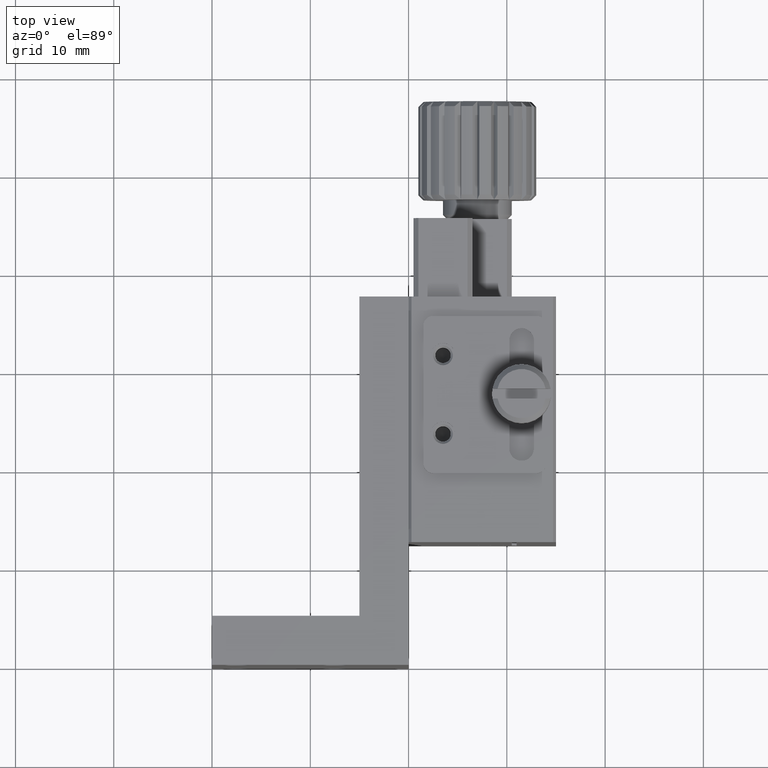
[diagram: clean part render]
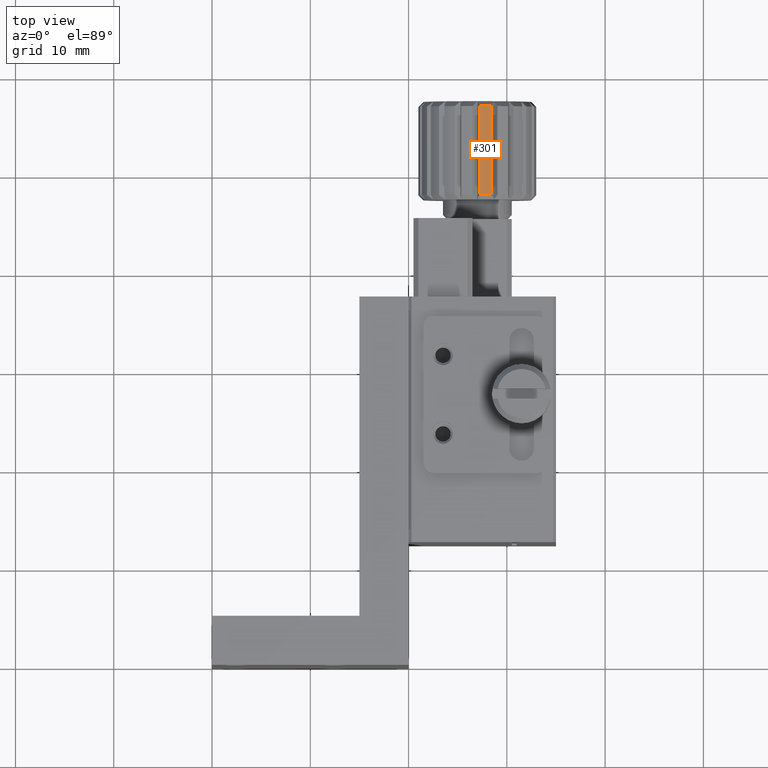
[diagram: same view with one face highlighted and labeled with its STEP entity id]
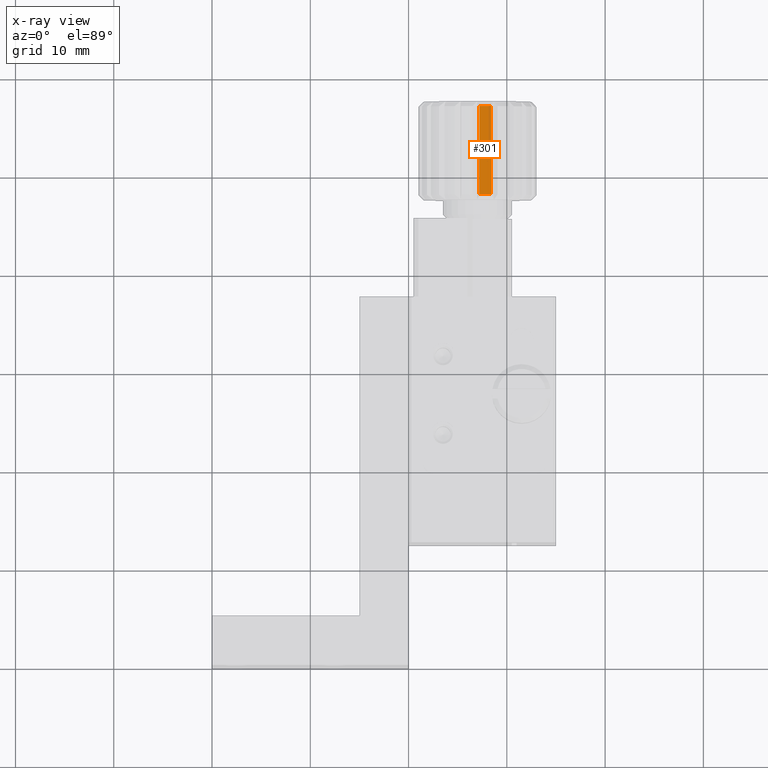
[diagram: x-ray of the same camera — body ghosted, the highlighted face saturated]
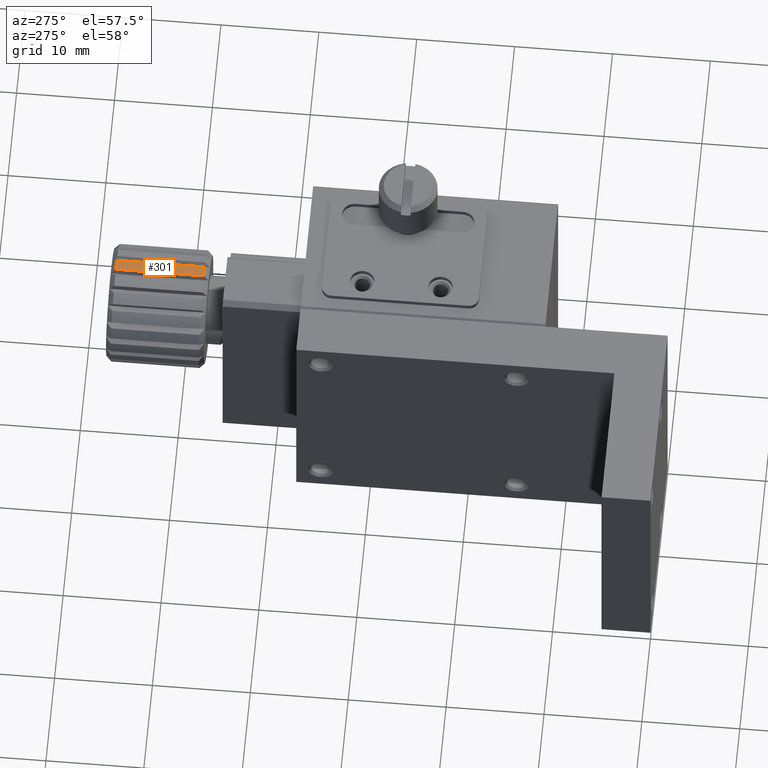
[diagram: same view with one face highlighted and labeled with its STEP entity id]
A machine part, top view. The second image highlights one B-rep face of the part: STEP entity #301.
The next image is the same camera in x-ray: the body ghosted, the highlighted face saturated — about 0% of this face is hidden behind the body in this view.
A second angle (auxiliary view) of the same face is appended — the face is thin or edge-on in the first view.
In plain terms, the highlighted cylindrical surface (partial cylindrical patch) has radius 6 mm, axis along (0, 1, 0).
Its self-contained STEP definition (entity closure, byte-faithful):
#211 = VERTEX_POINT ( 'NONE', #5544 ) ;
#301 = ADVANCED_FACE ( 'NONE', ( #8154 ), #831, .T. ) ;
#441 = AXIS2_PLACEMENT_3D ( 'NONE', #6805, #7637, #4318 ) ;
#681 = ORIENTED_EDGE ( 'NONE', *, *, #1099, .T. ) ;
#831 = CYLINDRICAL_SURFACE ( 'NONE', #441, 6.000000000000000888 ) ;
#991 = CARTESIAN_POINT ( 'NONE',  ( 7.206968626548806434, 48.00000000000000000, -6.503570730207477446 ) ) ;
#1099 = EDGE_CURVE ( 'NONE', #211, #2296, #7386, .T. ) ;
#1217 = DIRECTION ( 'NONE',  ( 1.000000000000000000, 0.000000000000000000, 0.000000000000000000 ) ) ;
#1773 = VECTOR ( 'NONE', #3028, 1000.000000000000000 ) ;
#2213 = DIRECTION ( 'NONE',  ( 0.000000000000000000, 1.000000000000000000, 0.000000000000000000 ) ) ;
#2296 = VERTEX_POINT ( 'NONE', #4199 ) ;
#2309 = ORIENTED_EDGE ( 'NONE', *, *, #7731, .T. ) ;
#2382 = CARTESIAN_POINT ( 'NONE',  ( 7.206968626548806434, 57.50000000000000000, -6.503570730207478334 ) ) ;
#2859 = CARTESIAN_POINT ( 'NONE',  ( 8.394943181427027667, 57.50000000000000000, -6.664408040259305110 ) ) ;
#2958 = VERTEX_POINT ( 'NONE', #991 ) ;
#2987 = LINE ( 'NONE', #2382, #1773 ) ;
#3026 = EDGE_LOOP ( 'NONE', ( #2309, #681, #4725, #6938 ) ) ;
#3028 = DIRECTION ( 'NONE',  ( -0.000000000000000000, -1.000000000000000000, -0.000000000000000000 ) ) ;
#3364 = DIRECTION ( 'NONE',  ( -0.000000000000000000, -1.000000000000000000, -0.000000000000000000 ) ) ;
#4199 = CARTESIAN_POINT ( 'NONE',  ( 8.394943181427027667, 57.00000000000000000, -6.664408040259305110 ) ) ;
#4318 = DIRECTION ( 'NONE',  ( 1.000000000000000000, 0.000000000000000000, 0.000000000000000000 ) ) ;
#4407 = EDGE_CURVE ( 'NONE', #2296, #4447, #5674, .T. ) ;
#4414 = CIRCLE ( 'NONE', #6910, 6.000000000000000888 ) ;
#4447 = VERTEX_POINT ( 'NONE', #8027 ) ;
#4725 = ORIENTED_EDGE ( 'NONE', *, *, #4407, .T. ) ;
#5312 = CARTESIAN_POINT ( 'NONE',  ( 7.000000000000000000, 48.00000000000000000, -12.50000000000000000 ) ) ;
#5411 = DIRECTION ( 'NONE',  ( 1.000000000000000000, 0.000000000000000000, 0.000000000000000000 ) ) ;
#5544 = CARTESIAN_POINT ( 'NONE',  ( 8.394943181427027667, 48.00000000000000000, -6.664408040259305110 ) ) ;
#5591 = EDGE_CURVE ( 'NONE', #4447, #2958, #2987, .T. ) ;
#5674 = CIRCLE ( 'NONE', #6925, 6.000000000000000888 ) ;
#6805 = CARTESIAN_POINT ( 'NONE',  ( 7.000000000000000000, 57.50000000000000000, -12.50000000000000000 ) ) ;
#6910 = AXIS2_PLACEMENT_3D ( 'NONE', #5312, #7310, #1217 ) ;
#6925 = AXIS2_PLACEMENT_3D ( 'NONE', #8115, #3364, #5411 ) ;
#6938 = ORIENTED_EDGE ( 'NONE', *, *, #5591, .T. ) ;
#7276 = VECTOR ( 'NONE', #2213, 1000.000000000000000 ) ;
#7310 = DIRECTION ( 'NONE',  ( 0.000000000000000000, 1.000000000000000000, 0.000000000000000000 ) ) ;
#7386 = LINE ( 'NONE', #2859, #7276 ) ;
#7637 = DIRECTION ( 'NONE',  ( 0.000000000000000000, 1.000000000000000000, 0.000000000000000000 ) ) ;
#7731 = EDGE_CURVE ( 'NONE', #2958, #211, #4414, .T. ) ;
#8027 = CARTESIAN_POINT ( 'NONE',  ( 7.206968626548806434, 57.00000000000000000, -6.503570730207478334 ) ) ;
#8115 = CARTESIAN_POINT ( 'NONE',  ( 7.000000000000000000, 57.00000000000000000, -12.50000000000000000 ) ) ;
#8154 = FACE_OUTER_BOUND ( 'NONE', #3026, .T. ) ;